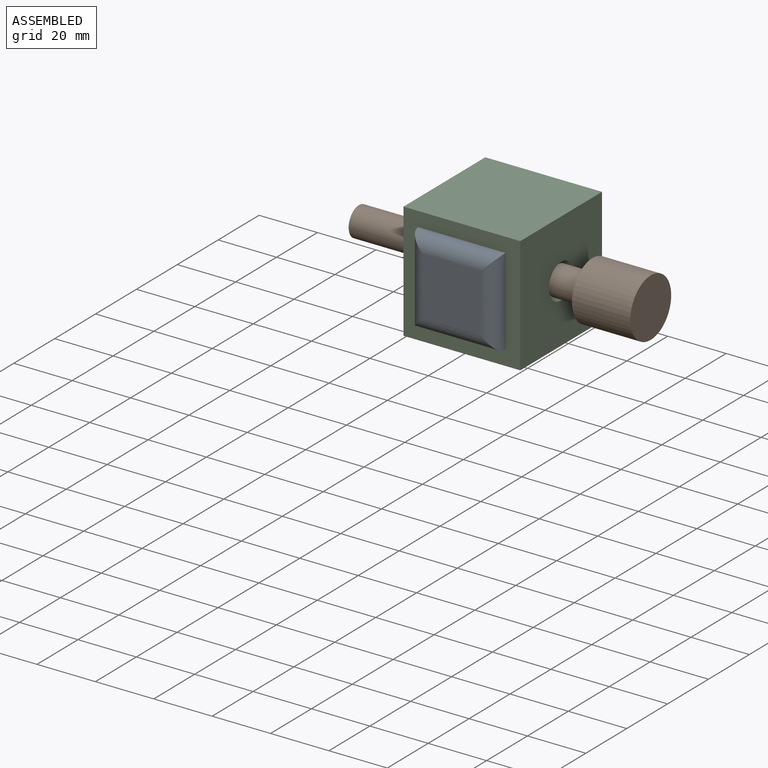
[diagram: assembled view]
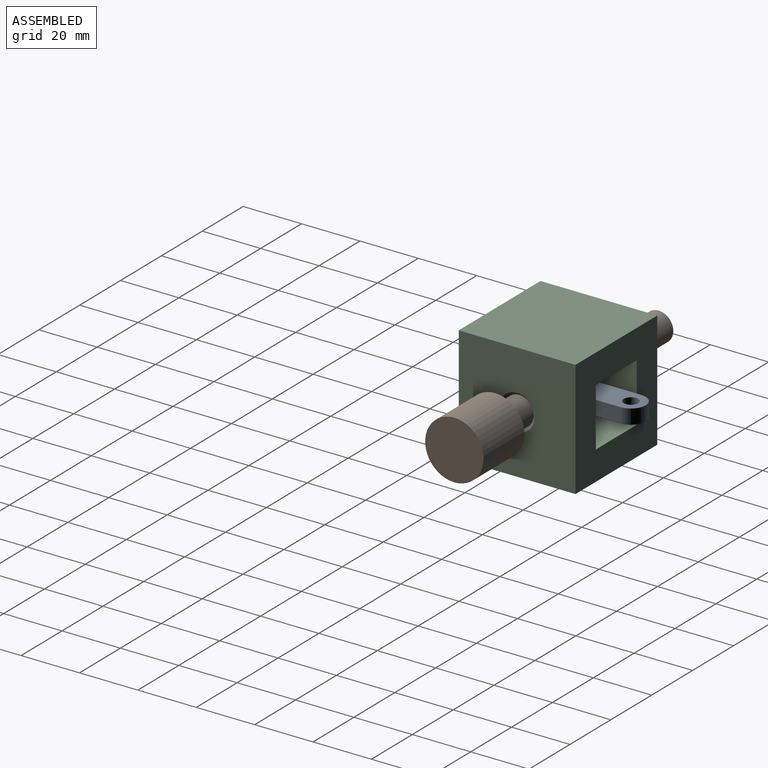
[diagram: assembled view, second angle]
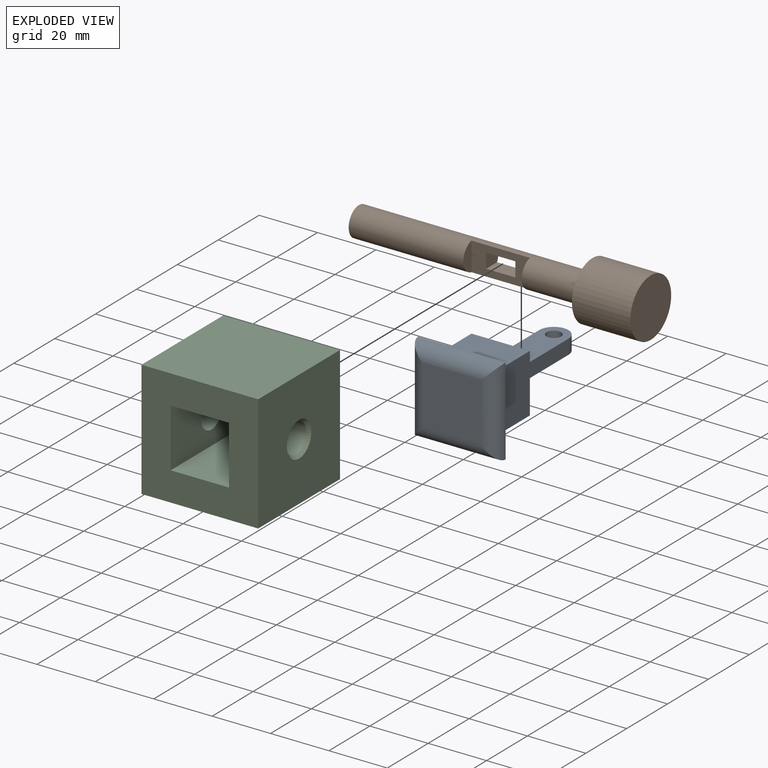
[diagram: exploded view]
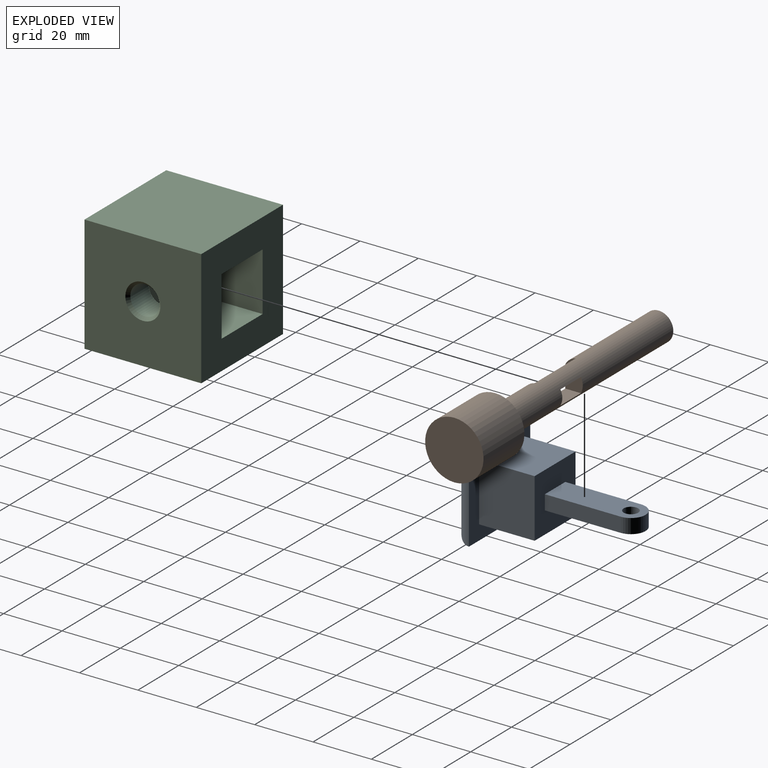
[diagram: exploded view, second angle]
ASSEMBLY  parts=3 mates=5
PART A: 17 faces, bbox 30x55x30 mm
  f0: plane 20x19mm, normal (0,0,1), area 380mm2, adj f1,f3,f4,f6
  f1: plane 20x19mm, normal (-1,0,0), area 380mm2, adj f0,f2,f4,f6
  f2: plane 20x19mm, normal (0,0,-1), area 380mm2, adj f1,f3,f4,f6
  f3: plane 20x19mm, normal (1,0,0), area 380mm2, adj f0,f2,f4,f6
  f4: plane 20x20mm, normal (0,1,0), area 350mm2, adj f0,f1,f2,f3,f11,f12,f13,f14
  f5: plane 20x20mm, normal (0,-1,0), area 400mm2, adj f7,f8,f9,f10
  f6: plane 30x30mm, normal (0,1,0), area 500mm2, adj f0,f1,f2,f3,f7,f8,f9,f10
  f7: cylinder r=5mm len=30mm, axis (1,0,0), area 207.1mm2, adj f5,f6,f8,f9
  f8: cylinder r=5mm len=30mm, axis (0,0,1), area 207.1mm2, adj f5,f6,f7,f10
  f9: cylinder r=5mm len=30mm, axis (0,0,-1), area 207.1mm2, adj f5,f6,f7,f10
  f10: cylinder r=5mm len=30mm, axis (-1,0,0), area 207.1mm2, adj f5,f6,f8,f9
  f11: plane 26x5mm, normal (0,0,1), area 130mm2, adj f4,f12,f14,f15
  f12: plane 31x10mm, normal (1,0,0), area 279.6mm2, adj f4,f11,f13,f15,f16
  f13: plane 26x5mm, normal (0,0,-1), area 130mm2, adj f4,f12,f14,f15
  f14: plane 31x10mm, normal (-1,0,0), area 279.6mm2, adj f4,f11,f13,f15,f16
  f15: cylinder r=5mm len=10mm, axis (-1,0,0), area 78.5mm2, adj f11,f12,f13,f14
  f16: cylinder r=2.5mm len=5mm, axis (1,0,0), area 78.5mm2, adj f12,f14
PART B: 12 faces, bbox 20x20x100 mm
  f0: cylinder r=5mm len=80mm, axis (0,0,1), area 2187mm2, adj f1,f3,f4,f6,f7,f8,f9,f10
  f1: plane 20x9.8mm, normal (0,-1,0), area 146mm2, adj f0,f6,f7,f8,f9,f10,f11
  f2: plane 20x20mm, normal (0,0,1), area 314.2mm2, adj f5
  f3: plane 10x10mm, normal (0,0,-1), area 78.5mm2, adj f0
  f4: plane 20x20mm, normal (0,0,-1), area 235.6mm2, adj f0,f5
  f5: cylinder r=10mm len=20mm, axis (0,0,1), area 1256.6mm2, adj f2,f4
  f6: plane 9.8x4mm, normal (0,0,-1), area 29.3mm2, adj f0,f1
  f7: plane 9.8x4mm, normal (0,0,1), area 29.3mm2, adj f0,f1
  f8: plane 6x5mm, normal (0,0,-1), area 28.9mm2, adj f0,f1,f9,f11
  f9: plane 10x5.33mm, normal (1,0,0), area 53.3mm2, adj f0,f1,f8,f10
  f10: plane 6x5mm, normal (0,0,1), area 28.9mm2, adj f0,f1,f9,f11
  f11: plane 10x5.33mm, normal (-1,0,0), area 53.3mm2, adj f0,f1,f8,f10
PART C: 14 faces, bbox 40x40x40 mm
  f0: plane 40x40mm, normal (0,-1,0), area 1200mm2, adj f3,f4,f5,f6,f8,f9,f10,f11
  f1: plane 40x40mm, normal (0,1,0), area 1200mm2, adj f3,f4,f5,f6,f8,f9,f10,f11
  f2: cylinder r=5mm len=10mm, axis (0,0,1), area 282.7mm2, adj f8,f12
  f3: plane 40x40mm, normal (0,0,1), area 1486.9mm2, adj f0,f1,f4,f6,f12
  f4: plane 40x40mm, normal (-1,0,0), area 1600mm2, adj f0,f1,f3,f5
  f5: plane 40x40mm, normal (0,0,-1), area 1486.9mm2, adj f0,f1,f4,f6,f13
  f6: plane 40x40mm, normal (1,0,0), area 1600mm2, adj f0,f1,f3,f5
  f7: cylinder r=5mm len=10mm, axis (0,0,1), area 282.7mm2, adj f9,f13
  f8: plane 40x20mm, normal (0,0,-1), area 721.5mm2, adj f0,f1,f2,f10,f11
  f9: plane 40x20mm, normal (0,0,1), area 721.5mm2, adj f0,f1,f7,f10,f11
  f10: plane 40x20mm, normal (1,0,0), area 800mm2, adj f0,f1,f8,f9
  f11: plane 40x20mm, normal (-1,0,0), area 800mm2, adj f0,f1,f8,f9
  f12: cone r=5mm half-angle=45deg, axis (0,0,1), area 48.9mm2, adj f2,f3
  f13: cone r=6mm half-angle=45deg, axis (0,0,-1), area 48.9mm2, adj f5,f7
PLACE A rot(axis=(0,-1,0),90deg) t=(276.91,322.73,-76.43)mm
PLACE B rot(axis=(0,1,0),90deg) t=(276.91,323.73,-76.43)mm
PLACE C rot(axis=(0,-1,0),90deg) t=(276.91,323.73,-76.43)mm fixed
MATE slider C.f2 <-> B.f0  axis (1,0,0) through (296.91,323.73,-76.43)mm
MATE parallel C.f0 <-> A.f6  axis (0,-1,0) through (266.91,303.73,-86.43)mm
MATE slider C.f0 <-> A.f5  axis (0,-1,0) through (276.91,303.73,-76.43)mm
MATE fastened C.f0 <-> A.f6  axis (0,-1,0) through (266.91,303.73,-86.43)mm
MATE slider A.f4 <-> B.f1  axis (0,1,0) through (281.91,322.73,-78.93)mm
